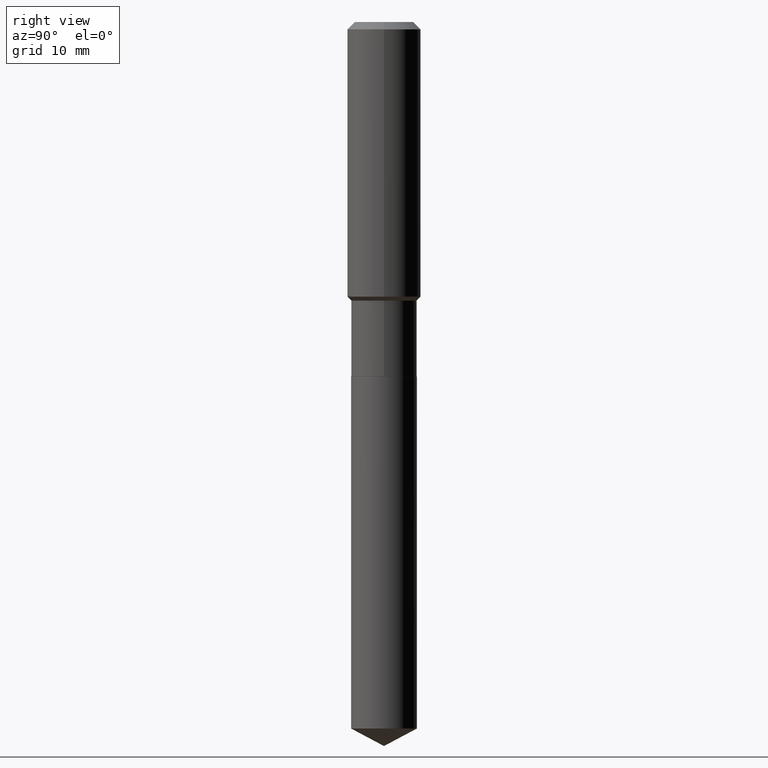
[diagram: clean part render]
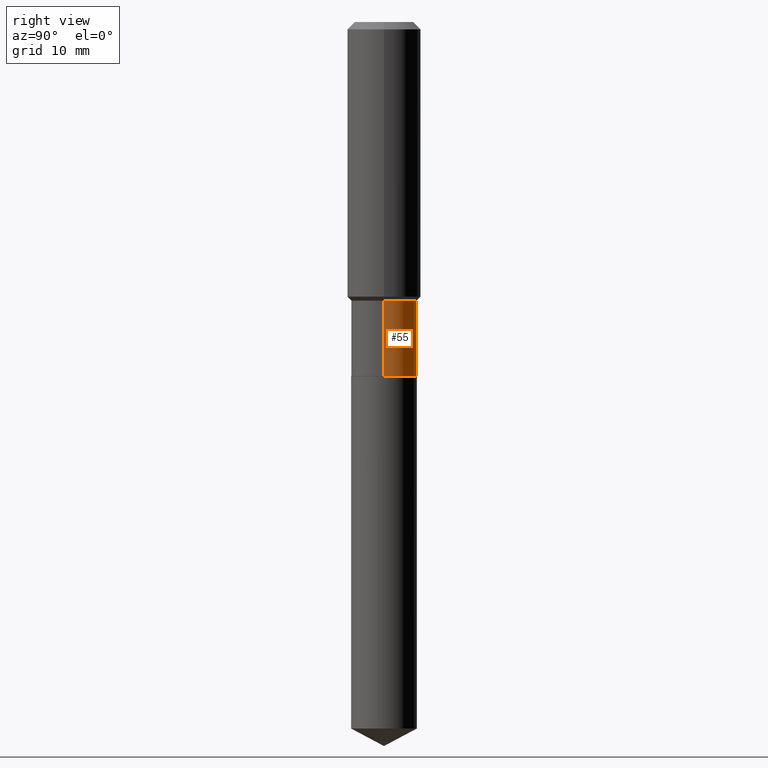
[diagram: same view with one face highlighted and labeled with its STEP entity id]
A machine part, right view. The second image highlights one B-rep face of the part: STEP entity #55.
In plain terms, the highlighted cylindrical surface (edge-blend (fillet) strip) has radius 5.3581 mm, axis along (-0, 0, 1).
Its self-contained STEP definition (entity closure, byte-faithful):
#6 = EDGE_LOOP ( 'NONE', ( #343, #350, #453, #188 ) ) ;
#13 = CARTESIAN_POINT ( 'NONE',  ( -0.2109499999999999986, -5.588991790832597522E-15, -2.272400000000000198 ) ) ;
#14 = EDGE_CURVE ( 'NONE', #215, #448, #90, .T. ) ;
#24 = LINE ( 'NONE', #214, #348 ) ;
#36 = CYLINDRICAL_SURFACE ( 'NONE', #160, 0.2109499999999999709 ) ;
#55 = ADVANCED_FACE ( 'NONE', ( #257 ), #36, .T. ) ;
#70 = CARTESIAN_POINT ( 'NONE',  ( 0.000000000000000000, 0.000000000000000000, 0.000000000000000000 ) ) ;
#90 = LINE ( 'NONE', #98, #147 ) ;
#97 = DIRECTION ( 'NONE',  ( 1.000000000000000000, -6.982962677686271444E-15, 0.000000000000000000 ) ) ;
#98 = CARTESIAN_POINT ( 'NONE',  ( -0.2109499999999999709, 1.498889901085931135E-15, -1.037649357289272242E-29 ) ) ;
#112 = EDGE_CURVE ( 'NONE', #271, #448, #265, .T. ) ;
#113 = CARTESIAN_POINT ( 'NONE',  ( -0.2109499999999999431, -5.588991790832597522E-15, -1.787700000000000067 ) ) ;
#140 = DIRECTION ( 'NONE',  ( -2.445468806185136877E-29, 3.491481338843145188E-15, 1.000000000000000000 ) ) ;
#147 = VECTOR ( 'NONE', #246, 39.37007874015748143 ) ;
#160 = AXIS2_PLACEMENT_3D ( 'NONE', #70, #222, #184 ) ;
#169 = DIRECTION ( 'NONE',  ( -2.445468806185136597E-29, 3.491481338843145583E-15, 1.000000000000000000 ) ) ;
#176 = CARTESIAN_POINT ( 'NONE',  ( 0.2109499999999999431, -7.714777166307809916E-15, -1.787700000000000067 ) ) ;
#179 = EDGE_CURVE ( 'NONE', #406, #215, #486, .T. ) ;
#184 = DIRECTION ( 'NONE',  ( 1.000000000000000000, -6.982962677686266711E-15, 4.876176775795935793E-29 ) ) ;
#188 = ORIENTED_EDGE ( 'NONE', *, *, #430, .F. ) ;
#210 = CARTESIAN_POINT ( 'NONE',  ( 5.557083315175104535E-29, -7.934042194387164964E-15, -2.272400000000000198 ) ) ;
#211 = CARTESIAN_POINT ( 'NONE',  ( 4.371764584817169348E-29, -6.241721189449891562E-15, -1.787700000000000067 ) ) ;
#214 = CARTESIAN_POINT ( 'NONE',  ( 0.2109499999999999709, -1.473055976857917762E-15, 1.028629490854152488E-29 ) ) ;
#215 = VERTEX_POINT ( 'NONE', #13 ) ;
#222 = DIRECTION ( 'NONE',  ( -2.445468806185136597E-29, 3.491481338843145583E-15, 1.000000000000000000 ) ) ;
#246 = DIRECTION ( 'NONE',  ( -2.445468806185136877E-29, 3.491481338843145188E-15, 1.000000000000000000 ) ) ;
#257 = FACE_OUTER_BOUND ( 'NONE', #6, .T. ) ;
#259 = AXIS2_PLACEMENT_3D ( 'NONE', #210, #320, #97 ) ;
#265 = CIRCLE ( 'NONE', #294, 0.2109499999999999431 ) ;
#271 = VERTEX_POINT ( 'NONE', #176 ) ;
#294 = AXIS2_PLACEMENT_3D ( 'NONE', #211, #169, #325 ) ;
#320 = DIRECTION ( 'NONE',  ( -2.445468806185136597E-29, 3.491481338843145583E-15, 1.000000000000000000 ) ) ;
#325 = DIRECTION ( 'NONE',  ( 1.000000000000000000, -6.982962677686268288E-15, 0.000000000000000000 ) ) ;
#343 = ORIENTED_EDGE ( 'NONE', *, *, #179, .T. ) ;
#348 = VECTOR ( 'NONE', #140, 39.37007874015748143 ) ;
#350 = ORIENTED_EDGE ( 'NONE', *, *, #14, .T. ) ;
#401 = CARTESIAN_POINT ( 'NONE',  ( 0.2109499999999999986, -9.407098171245084106E-15, -2.272400000000000198 ) ) ;
#406 = VERTEX_POINT ( 'NONE', #401 ) ;
#430 = EDGE_CURVE ( 'NONE', #406, #271, #24, .T. ) ;
#448 = VERTEX_POINT ( 'NONE', #113 ) ;
#453 = ORIENTED_EDGE ( 'NONE', *, *, #112, .F. ) ;
#486 = CIRCLE ( 'NONE', #259, 0.2109499999999999986 ) ;